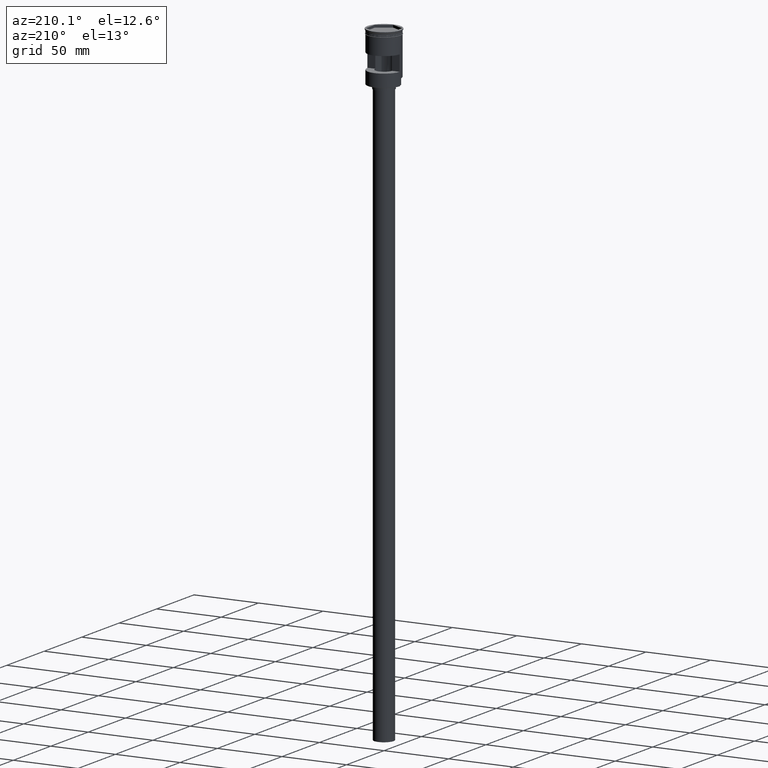
[diagram: clean part render]
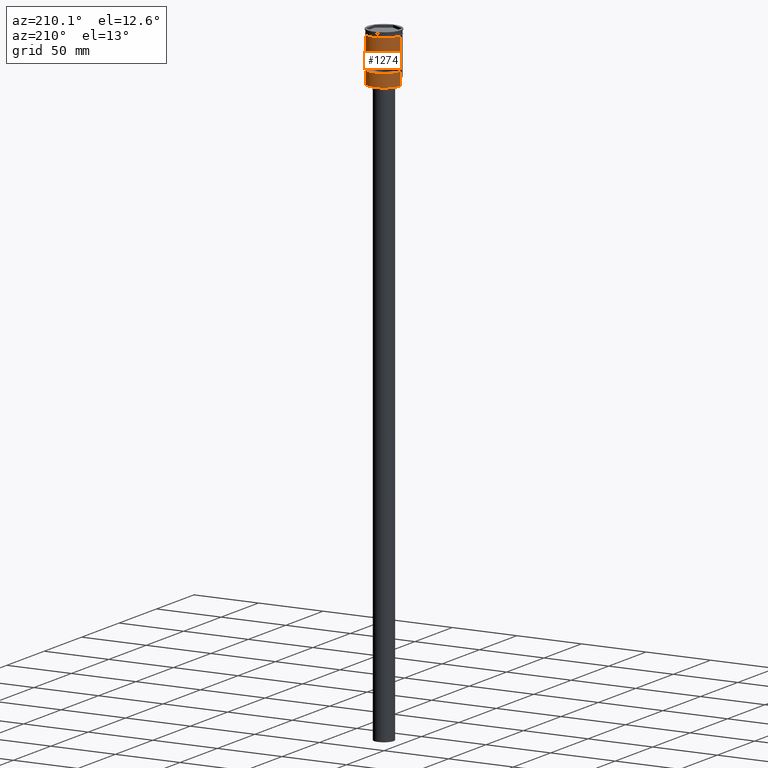
[diagram: same view with one face highlighted and labeled with its STEP entity id]
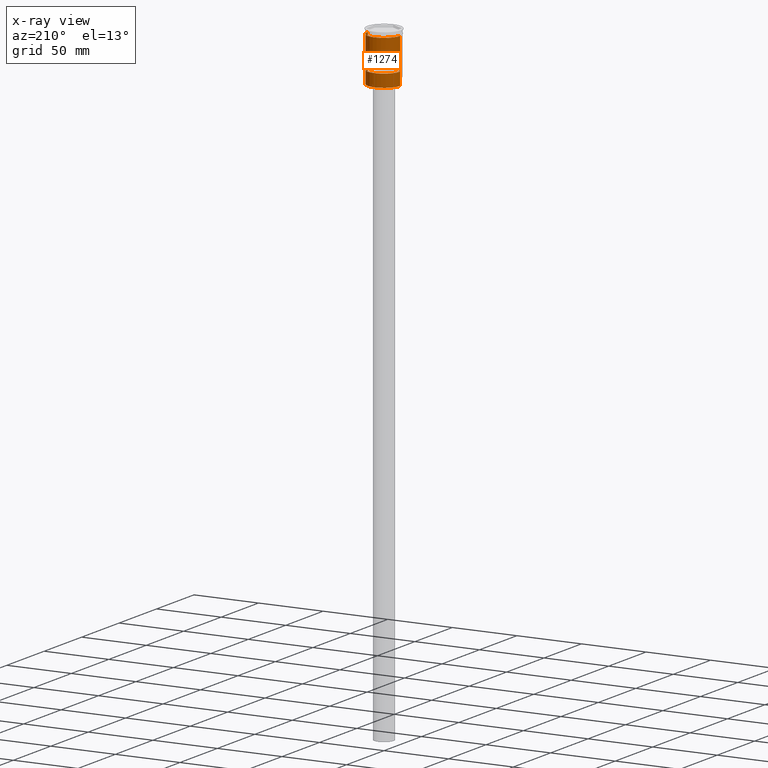
[diagram: x-ray of the same camera — body ghosted, the highlighted face saturated]
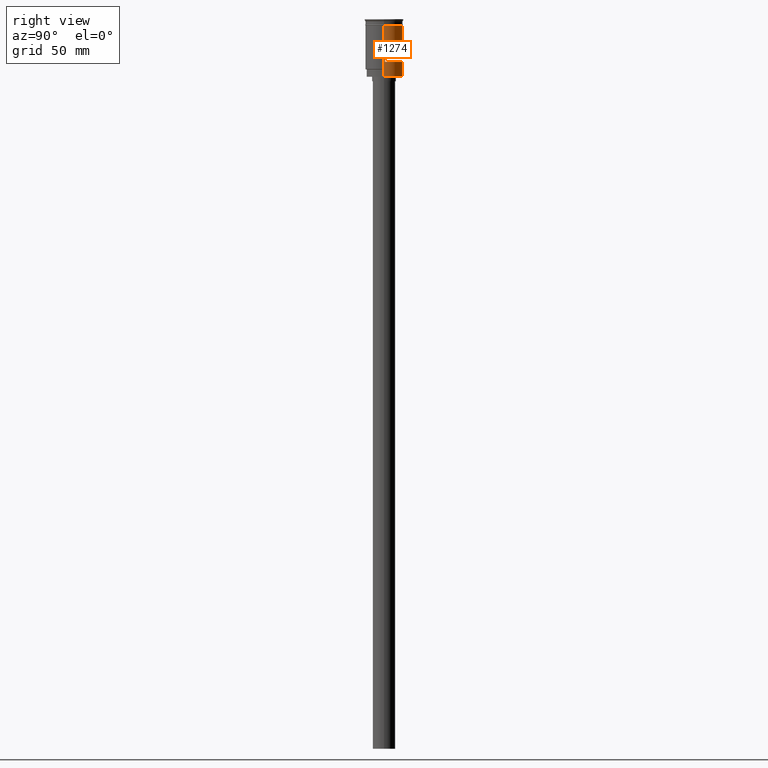
[diagram: same view with one face highlighted and labeled with its STEP entity id]
A machine part, auxiliary view. The second image highlights one B-rep face of the part: STEP entity #1274.
The next image is the same camera in x-ray: the body ghosted, the highlighted face saturated — about 0% of this face is hidden behind the body in this view.
A second angle (right view) of the same face is appended — the face is thin or edge-on in the first view.
In plain terms, the highlighted cylindrical surface (edge-blend (fillet) strip) has radius 12.5 mm, axis along (-0, -0, 1).
Its self-contained STEP definition (entity closure, byte-faithful):
#3 = CIRCLE ( 'NONE', #180, 12.49999999999999645 ) ;
#8 = CARTESIAN_POINT ( 'NONE',  ( -12.50000000000000000, 1.530808498934191521E-15, -3.999999999999996447 ) ) ;
#10 = DIRECTION ( 'NONE',  ( 0.000000000000000000, 0.000000000000000000, 1.000000000000000000 ) ) ;
#37 = DIRECTION ( 'NONE',  ( -0.000000000000000000, -0.000000000000000000, 1.000000000000000000 ) ) ;
#49 = VERTEX_POINT ( 'NONE', #1131 ) ;
#61 = CYLINDRICAL_SURFACE ( 'NONE', #691, 12.49999999999999645 ) ;
#89 = VERTEX_POINT ( 'NONE', #1567 ) ;
#101 = ORIENTED_EDGE ( 'NONE', *, *, #883, .F. ) ;
#128 = CARTESIAN_POINT ( 'NONE',  ( 12.49999999999999645, 0.000000000000000000, 0.000000000000000000 ) ) ;
#134 = LINE ( 'NONE', #1252, #1116 ) ;
#173 = ORIENTED_EDGE ( 'NONE', *, *, #775, .F. ) ;
#174 = CARTESIAN_POINT ( 'NONE',  ( 12.49999999999999289, 1.530808498934190732E-15, -38.50000000000000000 ) ) ;
#180 = AXIS2_PLACEMENT_3D ( 'NONE', #1376, #10, #757 ) ;
#187 = ORIENTED_EDGE ( 'NONE', *, *, #1103, .T. ) ;
#225 = EDGE_LOOP ( 'NONE', ( #1275, #326, #101, #1519, #1141, #187 ) ) ;
#302 = DIRECTION ( 'NONE',  ( -0.000000000000000000, -0.000000000000000000, 1.000000000000000000 ) ) ;
#303 = DIRECTION ( 'NONE',  ( 1.000000000000000000, 0.000000000000000000, 0.000000000000000000 ) ) ;
#326 = ORIENTED_EDGE ( 'NONE', *, *, #678, .T. ) ;
#339 = VECTOR ( 'NONE', #1067, 1000.000000000000000 ) ;
#340 = LINE ( 'NONE', #709, #1584 ) ;
#368 = CIRCLE ( 'NONE', #983, 12.49999999999999645 ) ;
#372 = CARTESIAN_POINT ( 'NONE',  ( -12.49999999999999289, 0.000000000000000000, -38.50000000000000000 ) ) ;
#397 = VERTEX_POINT ( 'NONE', #906 ) ;
#422 = DIRECTION ( 'NONE',  ( -0.000000000000000000, -0.000000000000000000, 1.000000000000000000 ) ) ;
#427 = FACE_OUTER_BOUND ( 'NONE', #225, .T. ) ;
#438 = AXIS2_PLACEMENT_3D ( 'NONE', #698, #422, #303 ) ;
#470 = VECTOR ( 'NONE', #302, 1000.000000000000000 ) ;
#474 = VERTEX_POINT ( 'NONE', #783 ) ;
#505 = CARTESIAN_POINT ( 'NONE',  ( 12.48559169603106689, 0.6000000000000003109, -16.50000000000000000 ) ) ;
#531 = FACE_BOUND ( 'NONE', #553, .T. ) ;
#553 = EDGE_LOOP ( 'NONE', ( #173, #1536, #852, #595 ) ) ;
#571 = EDGE_CURVE ( 'NONE', #598, #681, #1186, .T. ) ;
#584 = VERTEX_POINT ( 'NONE', #817 ) ;
#595 = ORIENTED_EDGE ( 'NONE', *, *, #660, .F. ) ;
#598 = VERTEX_POINT ( 'NONE', #688 ) ;
#603 = DIRECTION ( 'NONE',  ( -0.000000000000000000, -0.000000000000000000, 1.000000000000000000 ) ) ;
#604 = CARTESIAN_POINT ( 'NONE',  ( 0.000000000000000000, 0.000000000000000000, -16.50000000000000000 ) ) ;
#607 = VECTOR ( 'NONE', #1260, 1000.000000000000000 ) ;
#647 = LINE ( 'NONE', #128, #607 ) ;
#660 = EDGE_CURVE ( 'NONE', #89, #49, #3, .T. ) ;
#678 = EDGE_CURVE ( 'NONE', #474, #1539, #134, .T. ) ;
#681 = VERTEX_POINT ( 'NONE', #505 ) ;
#688 = CARTESIAN_POINT ( 'NONE',  ( -12.48559169603106689, 0.6000000000000003109, -16.50000000000000000 ) ) ;
#691 = AXIS2_PLACEMENT_3D ( 'NONE', #1285, #1291, #1169 ) ;
#698 = CARTESIAN_POINT ( 'NONE',  ( 0.000000000000000000, 0.000000000000000000, -3.999999999999996447 ) ) ;
#709 = CARTESIAN_POINT ( 'NONE',  ( -12.48559169603106689, 0.6000000000000003109, 0.000000000000000000 ) ) ;
#751 = EDGE_CURVE ( 'NONE', #397, #474, #898, .T. ) ;
#757 = DIRECTION ( 'NONE',  ( -1.000000000000000000, 0.000000000000000000, 0.000000000000000000 ) ) ;
#775 = EDGE_CURVE ( 'NONE', #681, #89, #1416, .T. ) ;
#783 = CARTESIAN_POINT ( 'NONE',  ( -12.49999999999999289, 0.000000000000000000, -33.30000000000005400 ) ) ;
#817 = CARTESIAN_POINT ( 'NONE',  ( 12.49999999999999822, 0.000000000000000000, -3.999999999999996447 ) ) ;
#819 = LINE ( 'NONE', #174, #470 ) ;
#821 = CARTESIAN_POINT ( 'NONE',  ( 12.48559169603106689, 0.6000000000000003109, 0.000000000000000000 ) ) ;
#852 = ORIENTED_EDGE ( 'NONE', *, *, #1387, .F. ) ;
#877 = VERTEX_POINT ( 'NONE', #933 ) ;
#883 = EDGE_CURVE ( 'NONE', #584, #1539, #923, .T. ) ;
#892 = DIRECTION ( 'NONE',  ( 1.000000000000000000, 0.000000000000000000, 0.000000000000000000 ) ) ;
#898 = LINE ( 'NONE', #372, #1237 ) ;
#906 = CARTESIAN_POINT ( 'NONE',  ( -12.49999999999999289, 0.000000000000000000, -38.30000000000007532 ) ) ;
#923 = CIRCLE ( 'NONE', #438, 12.49999999999999822 ) ;
#933 = CARTESIAN_POINT ( 'NONE',  ( 12.49999999999999645, 1.530808498934191127E-15, -33.30000000000005400 ) ) ;
#983 = AXIS2_PLACEMENT_3D ( 'NONE', #1568, #1462, #1385 ) ;
#1031 = AXIS2_PLACEMENT_3D ( 'NONE', #604, #1241, #892 ) ;
#1067 = DIRECTION ( 'NONE',  ( 0.000000000000000000, 0.000000000000000000, -1.000000000000000000 ) ) ;
#1103 = EDGE_CURVE ( 'NONE', #1565, #397, #368, .T. ) ;
#1116 = VECTOR ( 'NONE', #1369, 1000.000000000000000 ) ;
#1131 = CARTESIAN_POINT ( 'NONE',  ( -12.48559169603106689, 0.6000000000000003109, -28.49999999999999645 ) ) ;
#1141 = ORIENTED_EDGE ( 'NONE', *, *, #1361, .F. ) ;
#1169 = DIRECTION ( 'NONE',  ( 1.000000000000000000, 0.000000000000000000, 0.000000000000000000 ) ) ;
#1186 = CIRCLE ( 'NONE', #1031, 12.49999999999999645 ) ;
#1237 = VECTOR ( 'NONE', #37, 1000.000000000000000 ) ;
#1241 = DIRECTION ( 'NONE',  ( -0.000000000000000000, 0.000000000000000000, -1.000000000000000000 ) ) ;
#1252 = CARTESIAN_POINT ( 'NONE',  ( -12.49999999999999645, 1.530808498934191127E-15, 0.000000000000000000 ) ) ;
#1260 = DIRECTION ( 'NONE',  ( -0.000000000000000000, -0.000000000000000000, 1.000000000000000000 ) ) ;
#1274 = ADVANCED_FACE ( 'NONE', ( #531, #427 ), #61, .T. ) ;
#1275 = ORIENTED_EDGE ( 'NONE', *, *, #751, .T. ) ;
#1285 = CARTESIAN_POINT ( 'NONE',  ( 0.000000000000000000, 0.000000000000000000, 0.000000000000000000 ) ) ;
#1291 = DIRECTION ( 'NONE',  ( -0.000000000000000000, -0.000000000000000000, 1.000000000000000000 ) ) ;
#1361 = EDGE_CURVE ( 'NONE', #1565, #877, #819, .T. ) ;
#1364 = CARTESIAN_POINT ( 'NONE',  ( 12.49999999999999289, 1.530808498934190732E-15, -38.30000000000007532 ) ) ;
#1369 = DIRECTION ( 'NONE',  ( -0.000000000000000000, -0.000000000000000000, 1.000000000000000000 ) ) ;
#1376 = CARTESIAN_POINT ( 'NONE',  ( 0.000000000000000000, 0.000000000000000000, -28.49999999999999645 ) ) ;
#1385 = DIRECTION ( 'NONE',  ( -1.000000000000000000, 0.000000000000000000, 0.000000000000000000 ) ) ;
#1387 = EDGE_CURVE ( 'NONE', #49, #598, #340, .T. ) ;
#1416 = LINE ( 'NONE', #821, #339 ) ;
#1462 = DIRECTION ( 'NONE',  ( 0.000000000000000000, 0.000000000000000000, 1.000000000000000000 ) ) ;
#1519 = ORIENTED_EDGE ( 'NONE', *, *, #1540, .F. ) ;
#1536 = ORIENTED_EDGE ( 'NONE', *, *, #571, .F. ) ;
#1539 = VERTEX_POINT ( 'NONE', #8 ) ;
#1540 = EDGE_CURVE ( 'NONE', #877, #584, #647, .T. ) ;
#1565 = VERTEX_POINT ( 'NONE', #1364 ) ;
#1567 = CARTESIAN_POINT ( 'NONE',  ( 12.48559169603106689, 0.6000000000000003109, -28.49999999999999645 ) ) ;
#1568 = CARTESIAN_POINT ( 'NONE',  ( 0.000000000000000000, 0.000000000000000000, -38.30000000000007532 ) ) ;
#1584 = VECTOR ( 'NONE', #603, 1000.000000000000000 ) ;